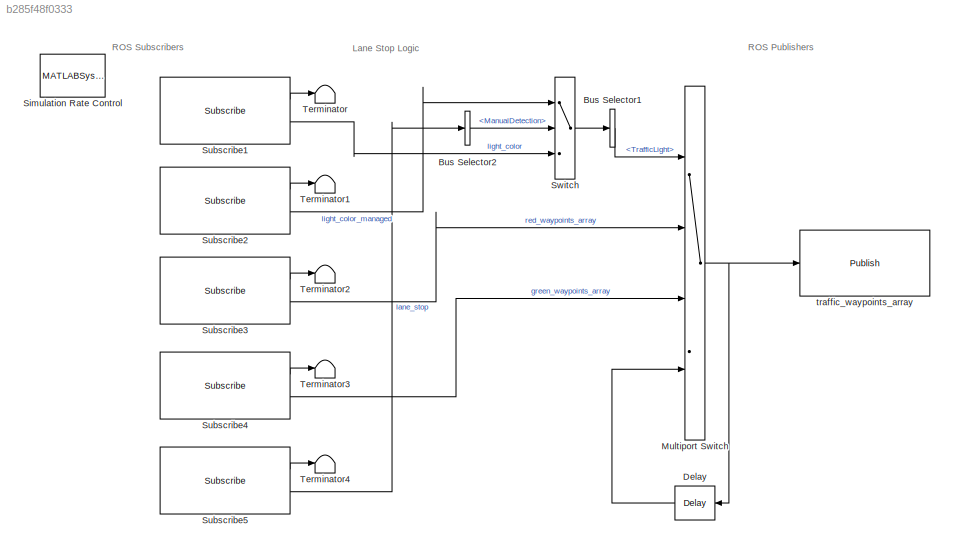
MODEL slx_b285f48f0333
KIND model
CONFIG AbsTol = auto
CONFIG EnableMultiTasking = on
CONFIG FixedStep = 0.1
CONFIG MaxStep = auto
CONFIG MinStep = auto
CONFIG RelTol = 1e-3
CONFIG SampleTimeConstraint = Unconstrained
CONFIG Solver = FixedStepDiscrete
CONFIG SolverName = FixedStepDiscrete
CONFIG StartTime = 0.0
CONFIG StopTime = inf
BLOCK [BusSelector] Bus Selector1
  OutputSignals = TrafficLight
  Ports = [1, 1]
BLOCK [BusSelector] Bus Selector2
  OutputSignals = ManualDetection
  Ports = [1, 1]
BLOCK [Delay] Delay
  DelayLength = 1
  InputPortMap = u0
  Ports = [1, 1]
BLOCK [MultiPortSwitch] Multiport Switch
  DiagnosticForDefault = None
  InputSameDT = off
  Ports = [4, 1]
  SaturateOnIntegerOverflow = off
BLOCK [MATLABSystem] Simulation Rate Control
  MaskDisplay = disp('Rate Control');
  MaskType = ExampleHelperSimulationRateControl
  Ports = []
  SampleTime = 0.1
  System = ExampleHelperSimulationRateControl
BLOCK [Reference] Subscribe1  REF=robotlib/Subscribe
  Ports = [0, 2]
  SourceBlock = robotlib/Subscribe
  SourceLibraryInfo = This block requires Robotics System Toolbox
  SourceType = ROS Subscribe
BLOCK [Reference] Subscribe2  REF=robotlib/Subscribe
  Ports = [0, 2]
  SourceBlock = robotlib/Subscribe
  SourceLibraryInfo = This block requires Robotics System Toolbox
  SourceType = ROS Subscribe
BLOCK [Reference] Subscribe3  REF=robotlib/Subscribe
  Ports = [0, 2]
  SourceBlock = robotlib/Subscribe
  SourceLibraryInfo = This block requires Robotics System Toolbox
  SourceType = ROS Subscribe
BLOCK [Reference] Subscribe4  REF=robotlib/Subscribe
  Ports = [0, 2]
  SourceBlock = robotlib/Subscribe
  SourceLibraryInfo = This block requires Robotics System Toolbox
  SourceType = ROS Subscribe
BLOCK [Reference] Subscribe5  REF=robotlib/Subscribe
  Ports = [0, 2]
  SourceBlock = robotlib/Subscribe
  SourceLibraryInfo = This block requires Robotics System Toolbox
  SourceType = ROS Subscribe
BLOCK [Switch] Switch
  Criteria = u2 ~= 0
  InputSameDT = off
  SaturateOnIntegerOverflow = off
  Threshold = t
  ZeroCross = off
BLOCK [Terminator] Terminator
BLOCK [Terminator] Terminator1
BLOCK [Terminator] Terminator2
BLOCK [Terminator] Terminator3
BLOCK [Terminator] Terminator4
BLOCK [Reference] traffic_waypoints_array  REF=robotlib/Publish
  Ports = [1]
  SourceBlock = robotlib/Publish
  SourceLibraryInfo = This block requires Robotics System Toolbox
  SourceType = ROS Publish
ANNOTATION (root): Lane Stop Logic
ANNOTATION (root): ROS Publishers
ANNOTATION (root): ROS Subscribers
LINE Bus Selector1:1 -> Multiport Switch:1
LINE Bus Selector2:1 -> Switch:2
LINE Delay:1 -> Multiport Switch:4
NET Multiport Switch:1 -> Delay:1, traffic_waypoints_array:1
LINE Subscribe1:1 -> Terminator:1
LINE Subscribe1:2 -> Switch:3
LINE Subscribe2:1 -> Terminator1:1
LINE Subscribe2:2 -> Switch:1
LINE Subscribe3:1 -> Terminator2:1
LINE Subscribe3:2 -> Multiport Switch:2
LINE Subscribe4:1 -> Terminator3:1
LINE Subscribe4:2 -> Multiport Switch:3
LINE Subscribe5:1 -> Terminator4:1
LINE Subscribe5:2 -> Bus Selector2:1
LINE Switch:1 -> Bus Selector1:1
note: NET lines group one-source signal fan-out (src -> all destinations, sorted); 1:1 wires keep LINE
